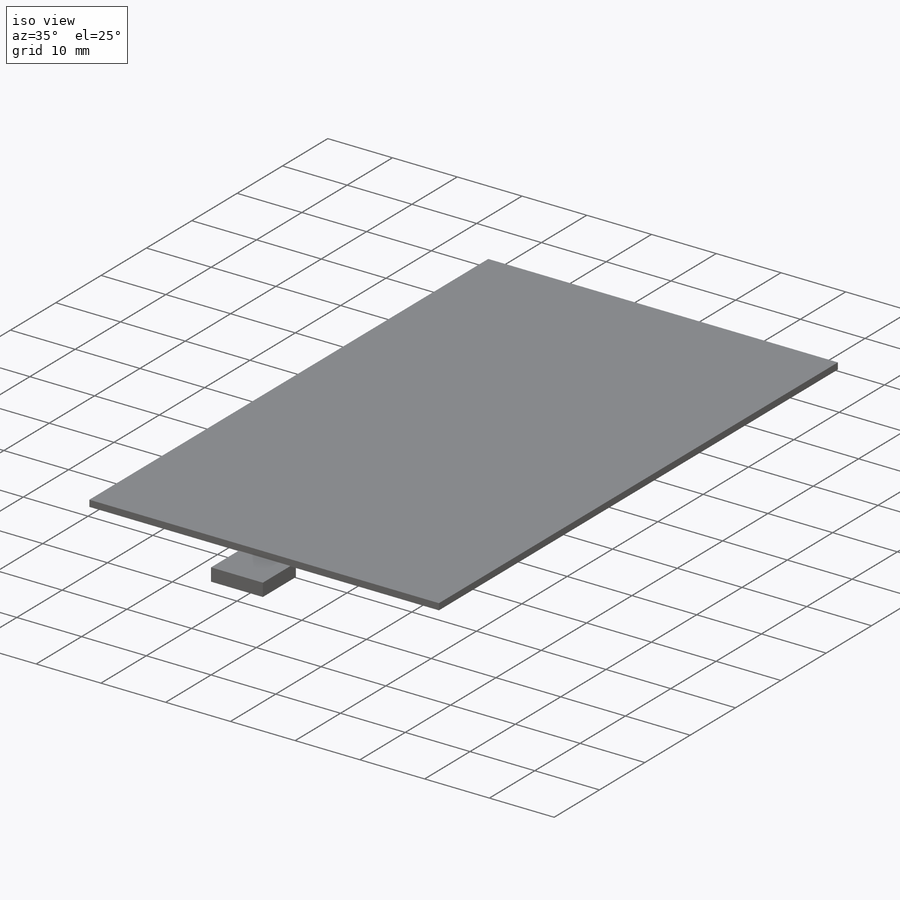
[diagram: iso view]
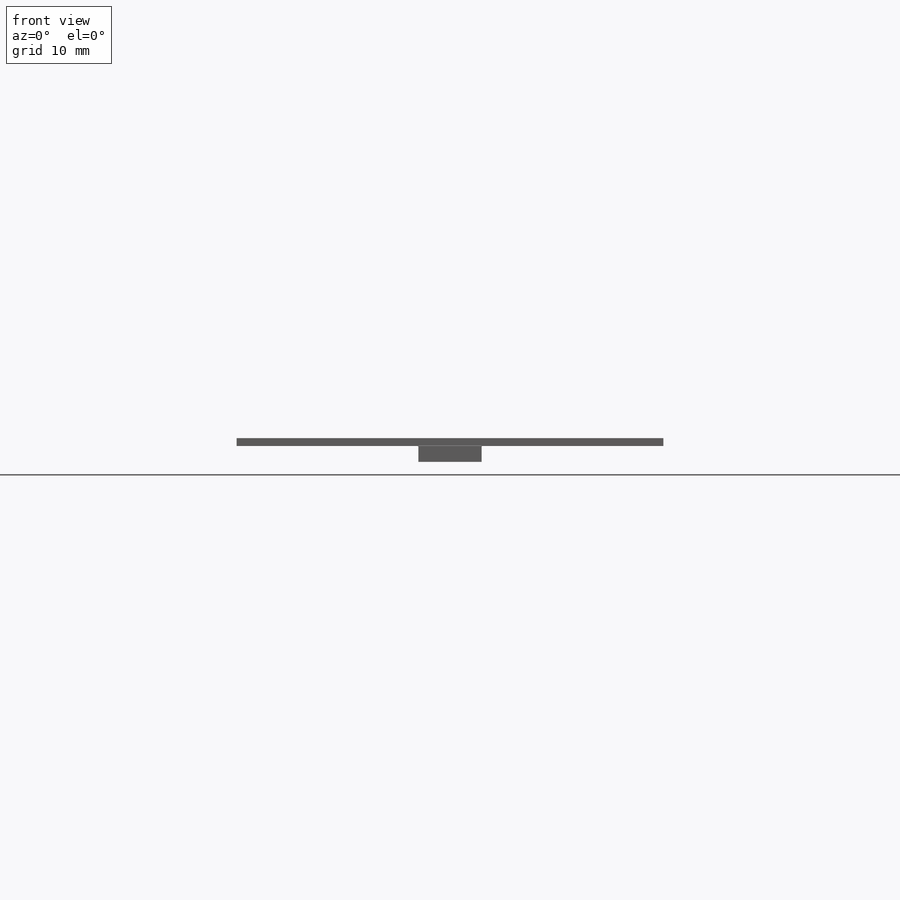
[diagram: front view]
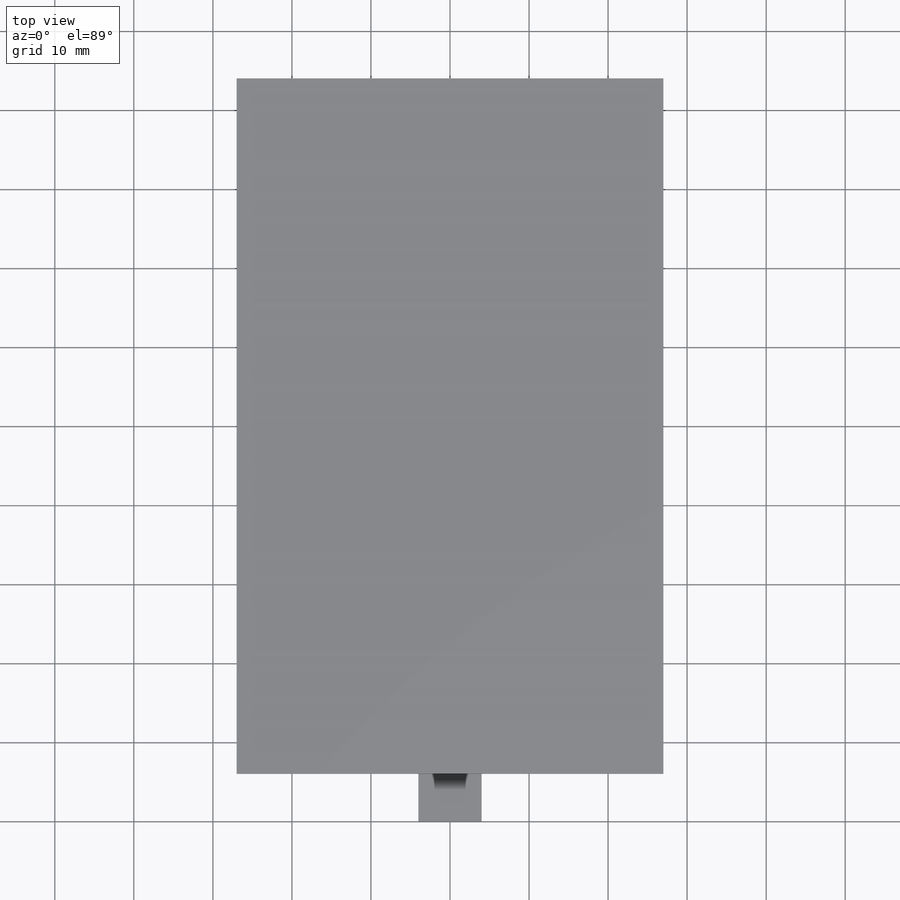
[diagram: top view]
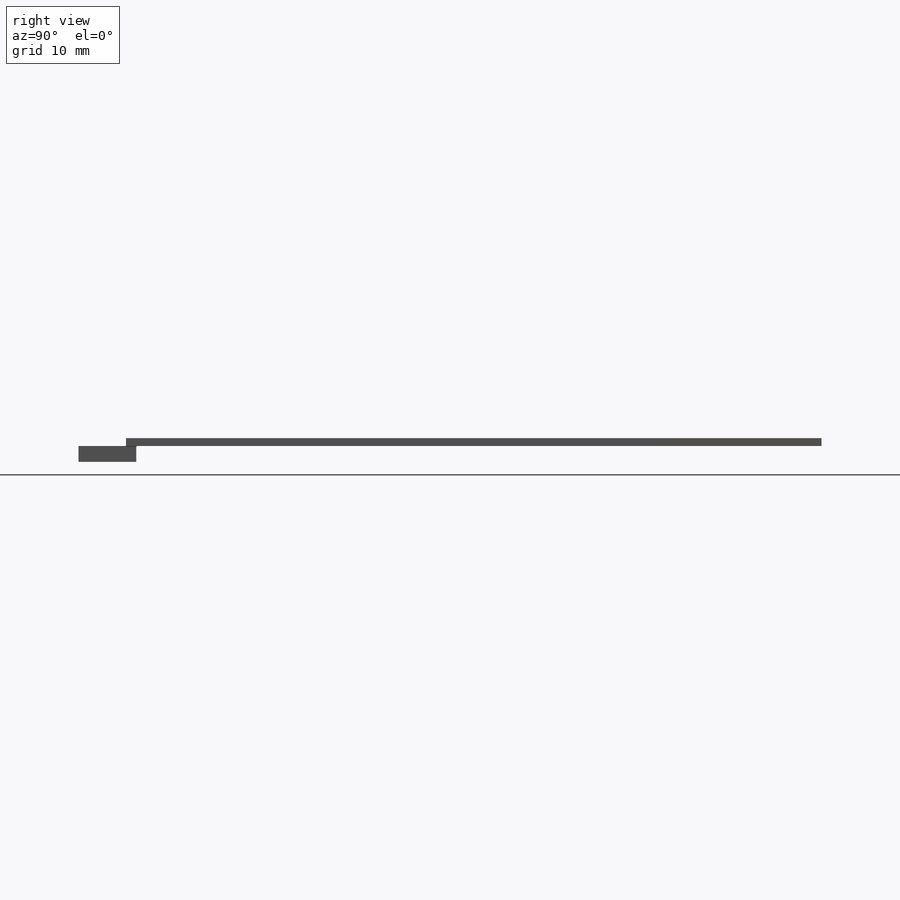
[diagram: right view]
SOLIDWORKS PART (.sldprt)
format: sldprt  version: not decoded by parser v0  size: 144,896 bytes
history: native  units: mm
features: sketch x2, extrude x2, fillet x2, material x1 (+13 scaffold rows collapsed)
feature tree (20):
  scaffold x13  (default folders/planes/origin — collapsed)
  material  "Material <not specified>"
  sketch  "Sketch1"  dims[D1=54.0mm D2=88.0mm]
  extrude  "Boss-Extrude1"  Depth=1mm
  sketch  "Sketch2"  dims[D1=4.0mm D2=1.3mm D3=6.0mm]
  extrude  "Boss-Extrude2"  Depth=2mm
  fillet  "Fillet4"  Radius=0.1mm
  fillet  "Fillet5"  Radius=0.1mm
decode coverage: 6 of 6 modeling features carry decoded parameters
note: suppression state not decoded; provenance and decode notes live in map.json
